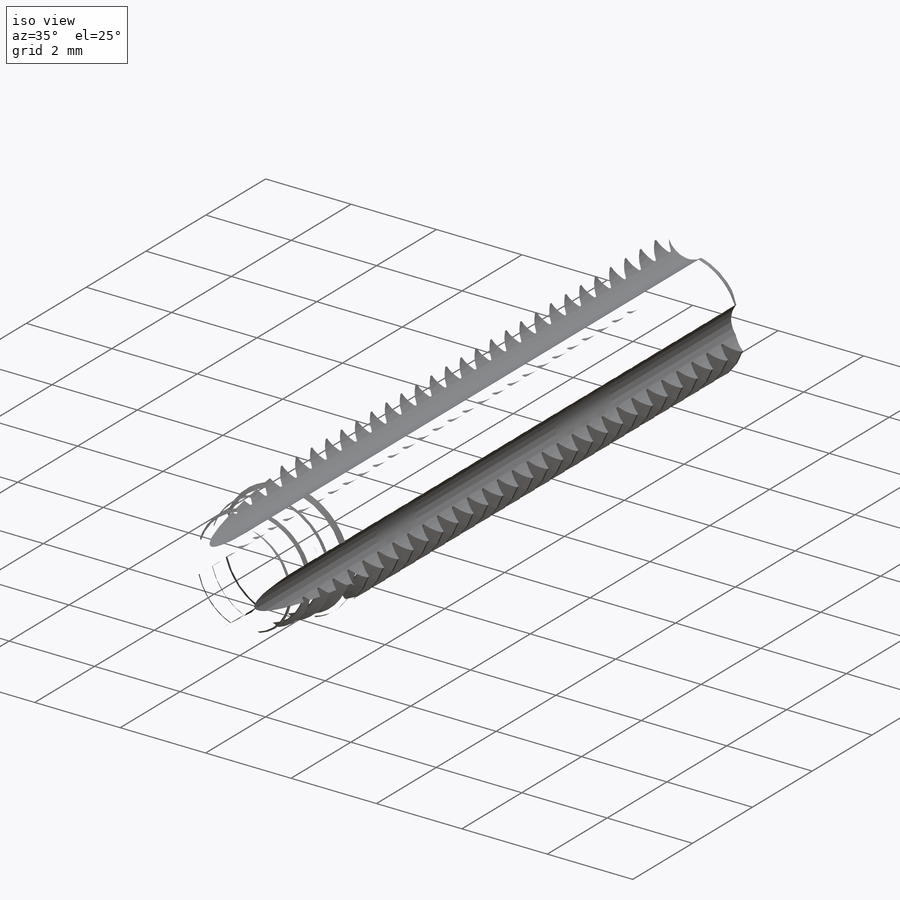
[diagram: iso view]
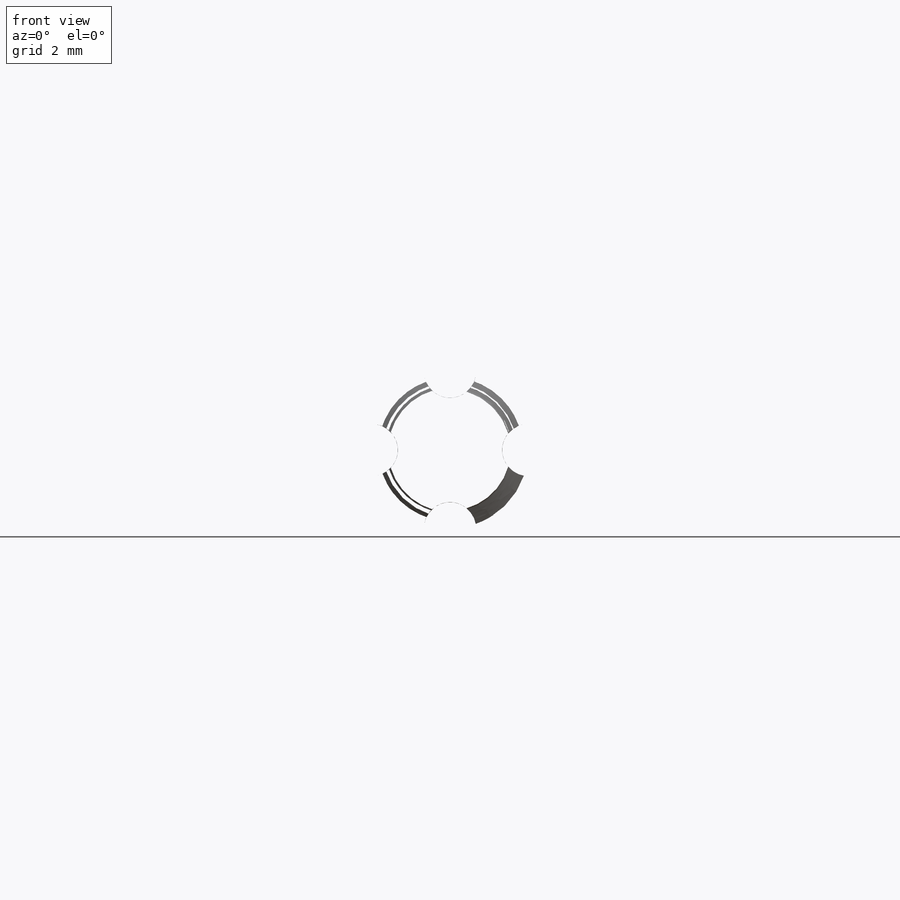
[diagram: front view]
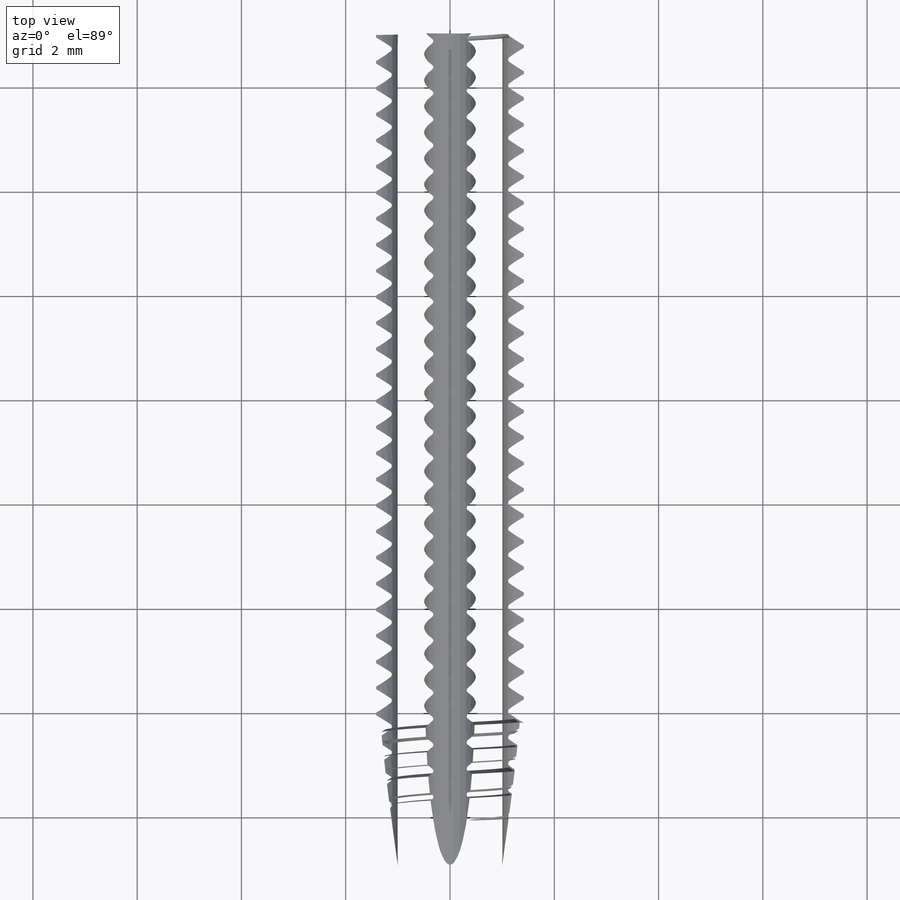
[diagram: top view]
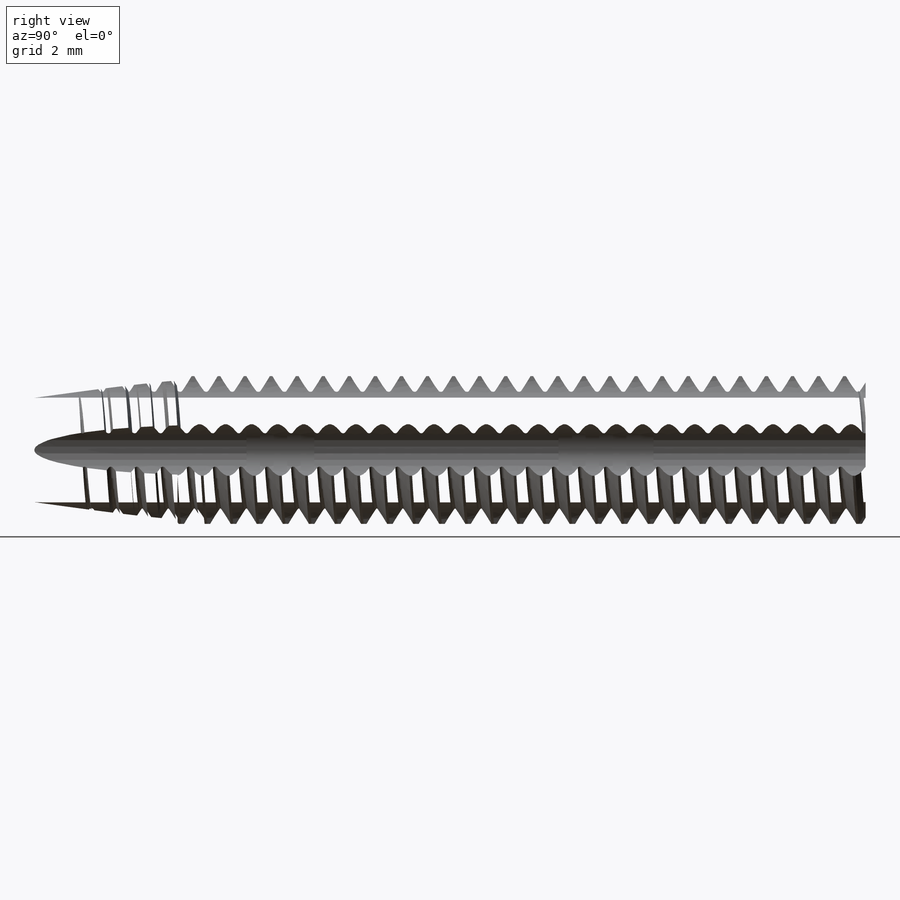
[diagram: right view]
SOLIDWORKS PART (.sldprt)
format: sldprt  version: not decoded by parser v0  size: 2,256,896 bytes
history: native  units: mm
features: sketch x8, extrude x3, cut_extrude x2, material x1, helix x1, sweep x1, cut_revolve x1, fillet x1 (+16 scaffold rows collapsed)
feature tree (34):
  scaffold x16  (default folders/planes/origin — collapsed)
  material  "Material <not specified>"
  sketch  "Sketch1"  dims[D1=~12.601901mm]
  extrude  "Boss-Extrude1"  Depth=30mm
  sketch  "Sketch2"  dims[D1=1.5mm]
  helix  "Helix/Spiral1"  Pitch=30mm
  sketch  "Sketch3"  dims[D1=0.49mm D2=0.45mm]
  sweep  "Cut-Sweep1"
  sketch  "Sketch7"  dims[D1=~0.429964mm]
  cut_extrude  "Cut-Extrude4"  Depth=19mm
  sketch  "Sketch9"  dims[D1=1.25mm]
  cut_extrude  "Cut-Extrude6"  Depth=35mm
  sketch  "Sketch10"
  extrude  "Boss-Extrude2"  Depth=5mm
  sketch  "Sketch11"  dims[D1=3.0mm]
  extrude  "Boss-Extrude3"  Depth=10mm
  sketch  "Sketch12"
  cut_revolve  "Cut-Revolve2"  Angle=360deg
  fillet  "Fillet1"  Radius=0.3mm
decode coverage: 14 of 17 modeling features carry decoded parameters
note: ~ marks probable driven/reference dimensions
note: suppression state not decoded; provenance and decode notes live in map.json
